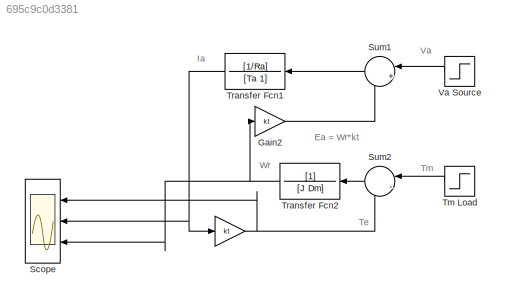
MODEL slx_695c9c0d3381
KIND model
BLOCK [Gain]  
  Gain = kt
  OutDataTypeStr = Inherit: Inherit via internal rule
  ParamDataTypeStr = Inherit: Inherit via internal rule
  SaturateOnIntegerOverflow = off
BLOCK [Gain] Gain2
  Gain = kt
  OutDataTypeStr = Inherit: Inherit via internal rule
  ParamDataTypeStr = Inherit: Inherit via internal rule
  SaturateOnIntegerOverflow = off
BLOCK [Scope] Scope
  DataFormat = StructureWithTime
  Floating = off
  LimitDataPoints = off
  NumInputPorts = 3
  Ports = [3]
  SampleTime = 0
  ShowLegends = off
  TimeRange = 1
  YMax = 0.012~1~300
  YMin = 0~0~0
BLOCK [Sum] Sum1
  IconShape = round
  InputSameDT = off
  Inputs = |+-
  OutDataTypeStr = Inherit: Inherit via internal rule
  Ports = [2, 1]
BLOCK [Sum] Sum2
  IconShape = round
  InputSameDT = off
  Inputs = |-+
  OutDataTypeStr = Inherit: Inherit via internal rule
  Ports = [2, 1]
BLOCK [Step] Tm Load
  After = Tm
  SampleTime = 0
  Time = 0.5
BLOCK [TransferFcn] Transfer Fcn1
  Denominator = [Ta 1]
  Numerator = [1/Ra]
BLOCK [TransferFcn] Transfer Fcn2
  Denominator = [J Dm]
BLOCK [Step] Va Source
  After = Va
  SampleTime = 0
  Time = 0
ANNOTATION (root): Ea = Wr*kt
ANNOTATION (root): Ia
ANNOTATION (root): Te
ANNOTATION (root): Tm
ANNOTATION (root): Va
ANNOTATION (root): Wr
NET  :1 -> Scope:1, Sum2:2
LINE Gain2:1 -> Sum1:2
LINE Sum1:1 -> Transfer Fcn1:1
LINE Sum2:1 -> Transfer Fcn2:1
LINE Tm Load:1 -> Sum2:1
NET Transfer Fcn1:1 ->  :1, Scope:2
NET Transfer Fcn2:1 -> Gain2:1, Scope:3
LINE Va Source:1 -> Sum1:1
note: NET lines group one-source signal fan-out (src -> all destinations, sorted); 1:1 wires keep LINE
